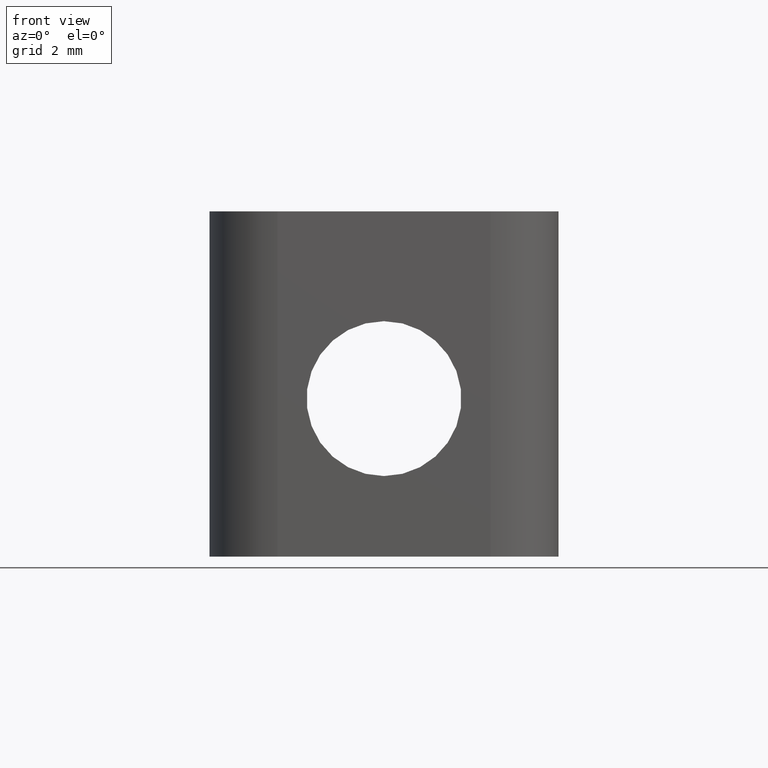
[diagram: clean part render]
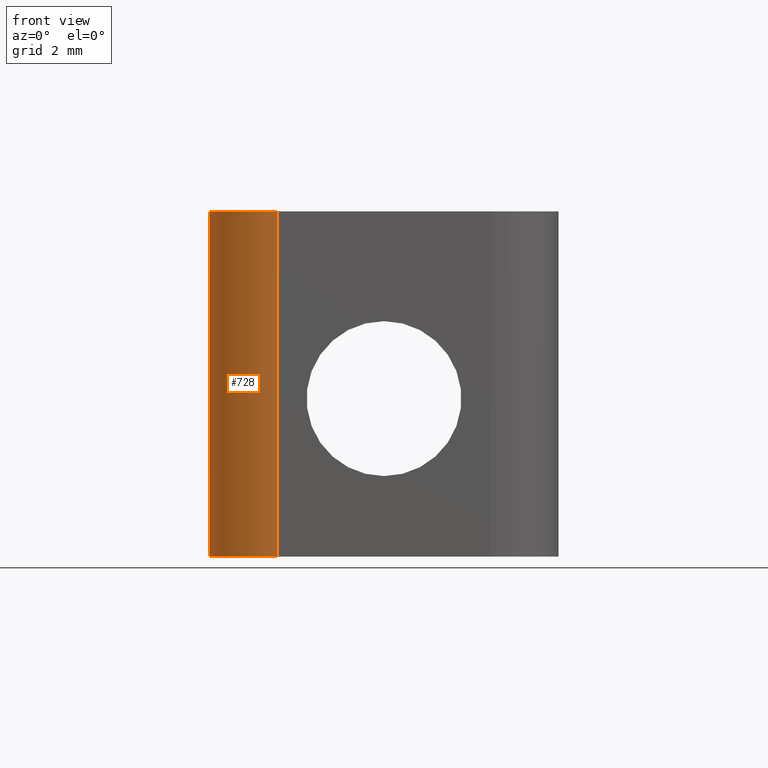
[diagram: same view with one face highlighted and labeled with its STEP entity id]
A machine part, front view. The second image highlights one B-rep face of the part: STEP entity #728.
In plain terms, the highlighted cylindrical surface (partial cylindrical patch) has radius 2.1844 mm, axis along (0, 0, 1).
Its self-contained STEP definition (entity closure, byte-faithful):
#150 = CIRCLE ( 'NONE', #1449, 0.08599999999999997900 ) ;
#379 = ORIENTED_EDGE ( 'NONE', *, *, #768, .F. ) ;
#392 = LINE ( 'NONE', #777, #786 ) ;
#467 = VECTOR ( 'NONE', #1183, 39.37007874015748100 ) ;
#503 = CARTESIAN_POINT ( 'NONE',  ( -0.1348468300000000300, 0.05499999999999998600, 0.06200000000000000000 ) ) ;
#600 = CARTESIAN_POINT ( 'NONE',  ( -0.2115001747654139400, 0.09399057240249990300, 0.06200000000000000000 ) ) ;
#710 = EDGE_CURVE ( 'NONE', #1340, #2445, #392, .T. ) ;
#728 = ADVANCED_FACE ( 'NONE', ( #1737 ), #2186, .T. ) ;
#768 = EDGE_CURVE ( 'NONE', #1340, #2326, #150, .T. ) ;
#777 = CARTESIAN_POINT ( 'NONE',  ( -0.1348468299999999700, -0.03100000000000000000, -0.3750000000000000600 ) ) ;
#786 = VECTOR ( 'NONE', #2262, 39.37007874015748100 ) ;
#787 = CARTESIAN_POINT ( 'NONE',  ( -0.2115001747654139400, 0.09399057240249990300, -0.3750000000000000600 ) ) ;
#818 = ORIENTED_EDGE ( 'NONE', *, *, #1619, .F. ) ;
#890 = DIRECTION ( 'NONE',  ( 0.0000000000000000000, 0.0000000000000000000, 1.000000000000000000 ) ) ;
#940 = CARTESIAN_POINT ( 'NONE',  ( -0.1348468299999999700, 0.05499999999999999300, -0.5903617038748000300 ) ) ;
#960 = ORIENTED_EDGE ( 'NONE', *, *, #710, .T. ) ;
#970 = DIRECTION ( 'NONE',  ( 0.0000000000000000000, 0.0000000000000000000, 1.000000000000000000 ) ) ;
#1049 = DIRECTION ( 'NONE',  ( -0.0000000000000000000, -0.0000000000000000000, -1.000000000000000000 ) ) ;
#1183 = DIRECTION ( 'NONE',  ( 0.0000000000000000000, 0.0000000000000000000, 1.000000000000000000 ) ) ;
#1189 = AXIS2_PLACEMENT_3D ( 'NONE', #940, #970, #2298 ) ;
#1340 = VERTEX_POINT ( 'NONE', #1796 ) ;
#1369 = ORIENTED_EDGE ( 'NONE', *, *, #1460, .F. ) ;
#1449 = AXIS2_PLACEMENT_3D ( 'NONE', #2375, #1049, #2460 ) ;
#1460 = EDGE_CURVE ( 'NONE', #2025, #2445, #1723, .T. ) ;
#1474 = LINE ( 'NONE', #787, #467 ) ;
#1619 = EDGE_CURVE ( 'NONE', #2326, #2025, #1474, .T. ) ;
#1653 = CARTESIAN_POINT ( 'NONE',  ( -0.2115001747654139400, 0.09399057240249990300, -0.3750000000000000600 ) ) ;
#1677 = EDGE_LOOP ( 'NONE', ( #960, #1369, #818, #379 ) ) ;
#1723 = CIRCLE ( 'NONE', #1938, 0.08599999999999997900 ) ;
#1737 = FACE_OUTER_BOUND ( 'NONE', #1677, .T. ) ;
#1796 = CARTESIAN_POINT ( 'NONE',  ( -0.1348468300000000000, -0.03099999999999998900, -0.3750000000000000600 ) ) ;
#1938 = AXIS2_PLACEMENT_3D ( 'NONE', #503, #890, #2227 ) ;
#2025 = VERTEX_POINT ( 'NONE', #600 ) ;
#2186 = CYLINDRICAL_SURFACE ( 'NONE', #1189, 0.08599999999999997900 ) ;
#2227 = DIRECTION ( 'NONE',  ( -1.000000000000000000, 0.0000000000000000000, 0.0000000000000000000 ) ) ;
#2262 = DIRECTION ( 'NONE',  ( 0.0000000000000000000, 0.0000000000000000000, 1.000000000000000000 ) ) ;
#2298 = DIRECTION ( 'NONE',  ( 1.000000000000000000, 0.0000000000000000000, 0.0000000000000000000 ) ) ;
#2326 = VERTEX_POINT ( 'NONE', #1653 ) ;
#2375 = CARTESIAN_POINT ( 'NONE',  ( -0.1348468299999999700, 0.05499999999999999300, -0.3750000000000000600 ) ) ;
#2440 = CARTESIAN_POINT ( 'NONE',  ( -0.1348468300000000000, -0.03100000000000000000, 0.06200000000000000000 ) ) ;
#2445 = VERTEX_POINT ( 'NONE', #2440 ) ;
#2460 = DIRECTION ( 'NONE',  ( 1.000000000000000000, 0.0000000000000000000, 0.0000000000000000000 ) ) ;